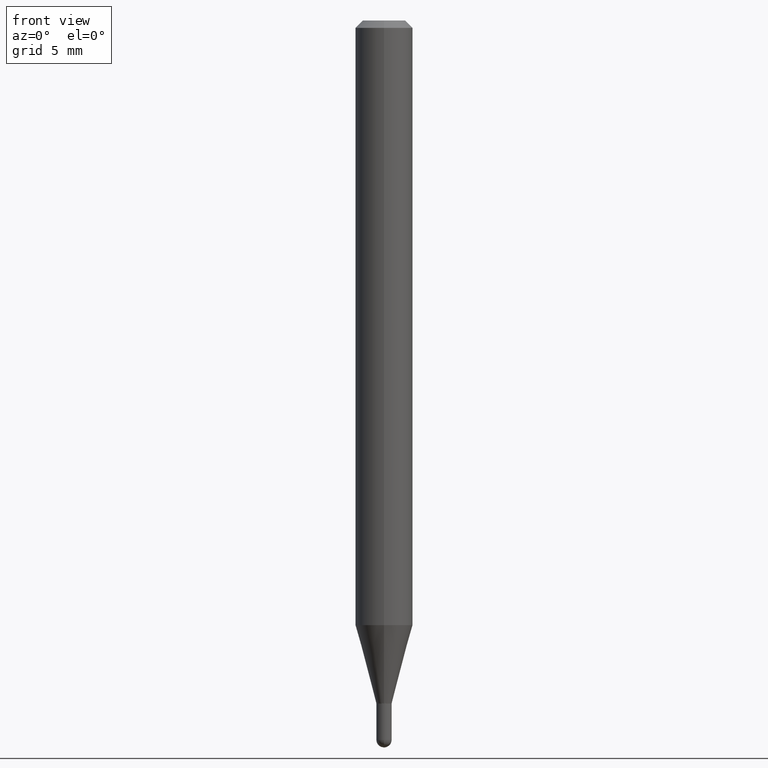
[diagram: clean part render]
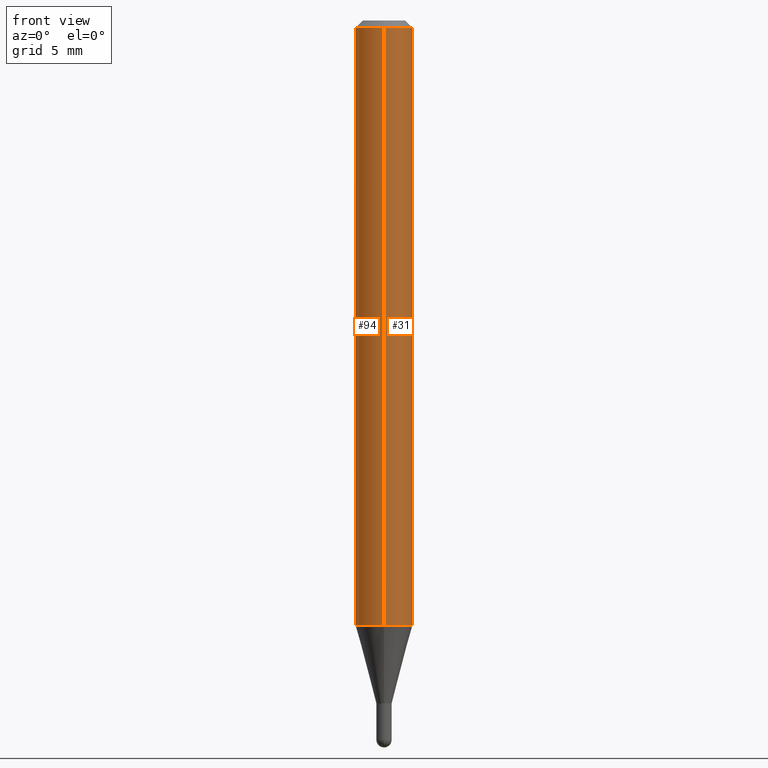
[diagram: same view with one multi-face feature highlighted, each face labeled with its STEP entity id]
A machine part, front view. The highlighted faces form ONE feature: a constant-radius fillet chain: 2 tangent blend faces with common blend radius 1.4999 mm. The faces share edges in the B-rep.
Their STEP definitions:
[1] entity #31 (Cylinder):
#30 = CARTESIAN_POINT ( 'NONE',  ( 4.195754854663697655E-16, 0.05904999999999994975, -0.01500000000000028741 ) ) ;
#31 = ADVANCED_FACE ( 'NONE', ( #488 ), #108, .T. ) ;
#38 = VERTEX_POINT ( 'NONE', #399 ) ;
#40 = EDGE_CURVE ( 'NONE', #371, #38, #53, .T. ) ;
#46 = ORIENTED_EDGE ( 'NONE', *, *, #61, .T. ) ;
#53 = LINE ( 'NONE', #213, #294 ) ;
#61 = EDGE_CURVE ( 'NONE', #371, #277, #154, .T. ) ;
#69 = DIRECTION ( 'NONE',  ( -6.982962677686265922E-15, -1.000000000000000000, 4.626330217890369336E-15 ) ) ;
#75 = ORIENTED_EDGE ( 'NONE', *, *, #452, .F. ) ;
#98 = EDGE_CURVE ( 'NONE', #277, #167, #417, .T. ) ;
#108 = CYLINDRICAL_SURFACE ( 'NONE', #111, 0.05904999999999999832 ) ;
#111 = AXIS2_PLACEMENT_3D ( 'NONE', #143, #175, #290 ) ;
#116 = ORIENTED_EDGE ( 'NONE', *, *, #40, .F. ) ;
#139 = DIRECTION ( 'NONE',  ( -2.445466752382438032E-29, 3.491484280005505170E-15, 1.000000000000000000 ) ) ;
#143 = CARTESIAN_POINT ( 'NONE',  ( 0.000000000000000000, 0.000000000000000000, 0.000000000000000000 ) ) ;
#154 = CIRCLE ( 'NONE', #342, 0.05904999999999999832 ) ;
#161 = CARTESIAN_POINT ( 'NONE',  ( 4.195754854663390985E-16, 0.05904999999999999832, -2.061721467343250858E-16 ) ) ;
#164 = VECTOR ( 'NONE', #462, 39.37007874015748143 ) ;
#167 = VERTEX_POINT ( 'NONE', #30 ) ;
#175 = DIRECTION ( 'NONE',  ( -2.445466752382438032E-29, 3.491484280005505170E-15, 1.000000000000000000 ) ) ;
#177 = AXIS2_PLACEMENT_3D ( 'NONE', #325, #139, #423 ) ;
#178 = CARTESIAN_POINT ( 'NONE',  ( 3.042710138684578593E-29, -4.344190984187706685E-15, -1.244224700957512697 ) ) ;
#199 = EDGE_LOOP ( 'NONE', ( #46, #400, #75, #116 ) ) ;
#213 = CARTESIAN_POINT ( 'NONE',  ( -4.123439461173739834E-16, -0.05904999999999999832, 2.061721467343250858E-16 ) ) ;
#225 = DIRECTION ( 'NONE',  ( -2.445466752382438032E-29, 3.491484280005505170E-15, 1.000000000000000000 ) ) ;
#244 = CARTESIAN_POINT ( 'NONE',  ( 4.195754854663695683E-16, 0.05904999999999565458, -1.244224700957513141 ) ) ;
#277 = VERTEX_POINT ( 'NONE', #244 ) ;
#290 = DIRECTION ( 'NONE',  ( -6.982962677686265922E-15, -1.000000000000000000, 3.491484280005505170E-15 ) ) ;
#294 = VECTOR ( 'NONE', #361, 39.37007874015748143 ) ;
#312 = CARTESIAN_POINT ( 'NONE',  ( -4.123439461173437109E-16, -0.05905000000000436289, -1.244224700957512475 ) ) ;
#325 = CARTESIAN_POINT ( 'NONE',  ( 3.668200128573676386E-31, -5.237226420008286401E-17, -0.01500000000000008098 ) ) ;
#342 = AXIS2_PLACEMENT_3D ( 'NONE', #178, #225, #69 ) ;
#361 = DIRECTION ( 'NONE',  ( -2.445466752382438312E-29, 3.491484280005505565E-15, 1.000000000000000000 ) ) ;
#371 = VERTEX_POINT ( 'NONE', #312 ) ;
#383 = CIRCLE ( 'NONE', #177, 0.05904999999999999832 ) ;
#399 = CARTESIAN_POINT ( 'NONE',  ( -4.123439461173736383E-16, -0.05905000000000005383, -0.01499999999999987454 ) ) ;
#400 = ORIENTED_EDGE ( 'NONE', *, *, #98, .T. ) ;
#417 = LINE ( 'NONE', #161, #164 ) ;
#423 = DIRECTION ( 'NONE',  ( -6.982962677686265922E-15, -1.000000000000000000, 3.505890868245046092E-15 ) ) ;
#452 = EDGE_CURVE ( 'NONE', #38, #167, #383, .T. ) ;
#462 = DIRECTION ( 'NONE',  ( -2.445466752382438312E-29, 3.491484280005505565E-15, 1.000000000000000000 ) ) ;
#488 = FACE_OUTER_BOUND ( 'NONE', #199, .T. ) ;
[2] entity #94 (Cylinder):
#3 = ORIENTED_EDGE ( 'NONE', *, *, #412, .F. ) ;
#30 = CARTESIAN_POINT ( 'NONE',  ( 4.195754854663697655E-16, 0.05904999999999994975, -0.01500000000000028741 ) ) ;
#38 = VERTEX_POINT ( 'NONE', #399 ) ;
#40 = EDGE_CURVE ( 'NONE', #371, #38, #53, .T. ) ;
#53 = LINE ( 'NONE', #213, #294 ) ;
#94 = ADVANCED_FACE ( 'NONE', ( #262 ), #258, .T. ) ;
#98 = EDGE_CURVE ( 'NONE', #277, #167, #417, .T. ) ;
#123 = EDGE_LOOP ( 'NONE', ( #461, #393, #429, #3 ) ) ;
#130 = DIRECTION ( 'NONE',  ( -2.445466752382438032E-29, 3.491484280005505170E-15, 1.000000000000000000 ) ) ;
#161 = CARTESIAN_POINT ( 'NONE',  ( 4.195754854663390985E-16, 0.05904999999999999832, -2.061721467343250858E-16 ) ) ;
#164 = VECTOR ( 'NONE', #462, 39.37007874015748143 ) ;
#167 = VERTEX_POINT ( 'NONE', #30 ) ;
#200 = DIRECTION ( 'NONE',  ( -6.982962677686265922E-15, -1.000000000000000000, 3.491484280005505170E-15 ) ) ;
#213 = CARTESIAN_POINT ( 'NONE',  ( -4.123439461173739834E-16, -0.05904999999999999832, 2.061721467343250858E-16 ) ) ;
#243 = CARTESIAN_POINT ( 'NONE',  ( 3.668200128573676386E-31, -5.237226420008286401E-17, -0.01500000000000008098 ) ) ;
#244 = CARTESIAN_POINT ( 'NONE',  ( 4.195754854663695683E-16, 0.05904999999999565458, -1.244224700957513141 ) ) ;
#258 = CYLINDRICAL_SURFACE ( 'NONE', #495, 0.05904999999999999832 ) ;
#262 = FACE_OUTER_BOUND ( 'NONE', #123, .T. ) ;
#270 = EDGE_CURVE ( 'NONE', #277, #371, #373, .T. ) ;
#276 = CARTESIAN_POINT ( 'NONE',  ( 3.042710138684578593E-29, -4.344190984187706685E-15, -1.244224700957512697 ) ) ;
#277 = VERTEX_POINT ( 'NONE', #244 ) ;
#278 = DIRECTION ( 'NONE',  ( -6.982962677686265922E-15, -1.000000000000000000, 3.505890868245046092E-15 ) ) ;
#294 = VECTOR ( 'NONE', #361, 39.37007874015748143 ) ;
#305 = CARTESIAN_POINT ( 'NONE',  ( 0.000000000000000000, 0.000000000000000000, 0.000000000000000000 ) ) ;
#311 = AXIS2_PLACEMENT_3D ( 'NONE', #243, #130, #278 ) ;
#312 = CARTESIAN_POINT ( 'NONE',  ( -4.123439461173437109E-16, -0.05905000000000436289, -1.244224700957512475 ) ) ;
#322 = DIRECTION ( 'NONE',  ( -6.982962677686265922E-15, -1.000000000000000000, 4.626330217890369336E-15 ) ) ;
#361 = DIRECTION ( 'NONE',  ( -2.445466752382438312E-29, 3.491484280005505565E-15, 1.000000000000000000 ) ) ;
#365 = DIRECTION ( 'NONE',  ( -2.445466752382438032E-29, 3.491484280005505170E-15, 1.000000000000000000 ) ) ;
#371 = VERTEX_POINT ( 'NONE', #312 ) ;
#373 = CIRCLE ( 'NONE', #394, 0.05904999999999999832 ) ;
#393 = ORIENTED_EDGE ( 'NONE', *, *, #270, .T. ) ;
#394 = AXIS2_PLACEMENT_3D ( 'NONE', #276, #365, #322 ) ;
#399 = CARTESIAN_POINT ( 'NONE',  ( -4.123439461173736383E-16, -0.05905000000000005383, -0.01499999999999987454 ) ) ;
#412 = EDGE_CURVE ( 'NONE', #167, #38, #478, .T. ) ;
#417 = LINE ( 'NONE', #161, #164 ) ;
#418 = DIRECTION ( 'NONE',  ( -2.445466752382438032E-29, 3.491484280005505170E-15, 1.000000000000000000 ) ) ;
#429 = ORIENTED_EDGE ( 'NONE', *, *, #40, .T. ) ;
#461 = ORIENTED_EDGE ( 'NONE', *, *, #98, .F. ) ;
#462 = DIRECTION ( 'NONE',  ( -2.445466752382438312E-29, 3.491484280005505565E-15, 1.000000000000000000 ) ) ;
#478 = CIRCLE ( 'NONE', #311, 0.05904999999999999832 ) ;
#495 = AXIS2_PLACEMENT_3D ( 'NONE', #305, #418, #200 ) ;